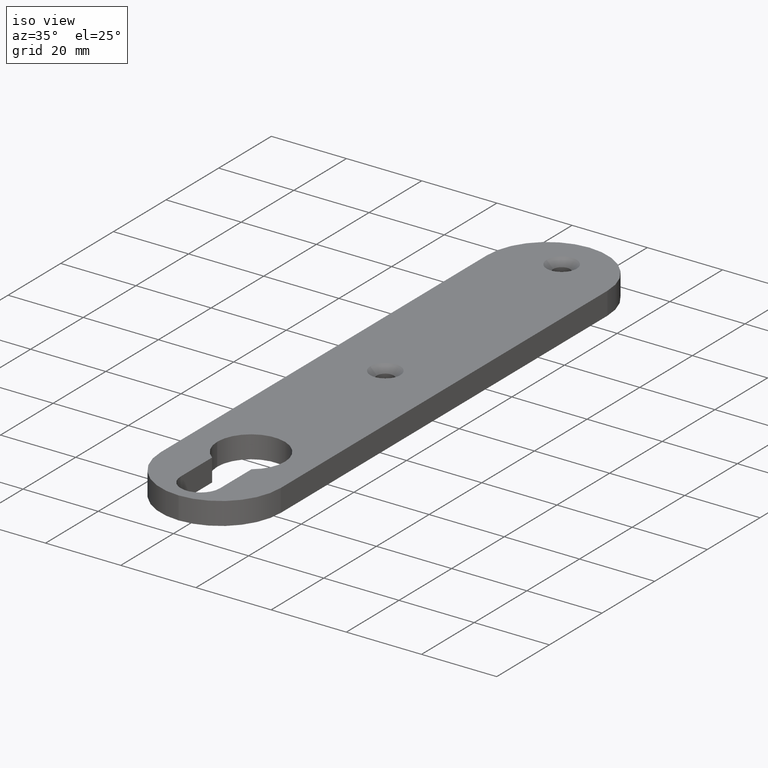
[diagram: clean part render]
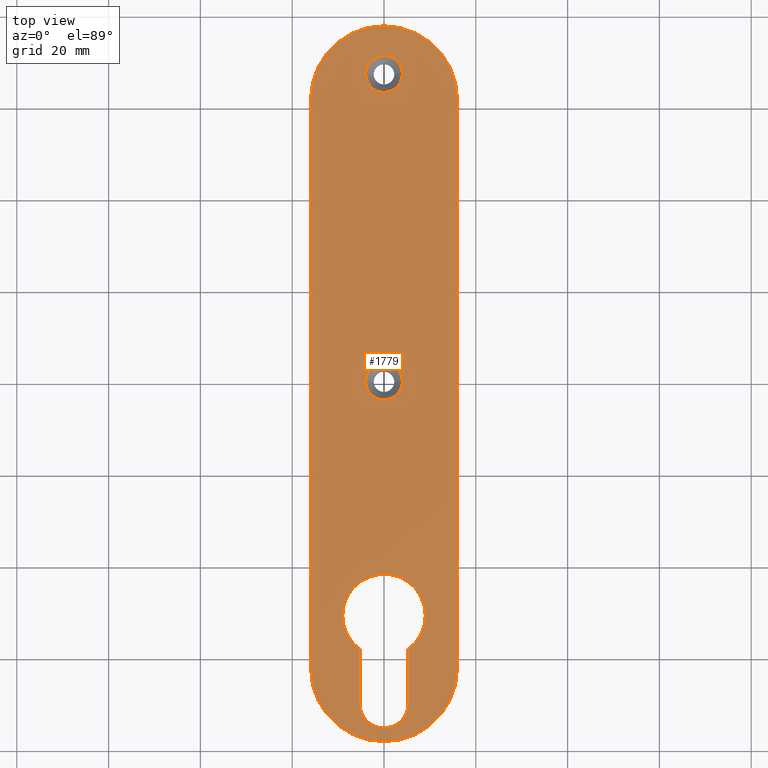
[diagram: tour spotlight — one face highlighted and labeled with its STEP entity id]
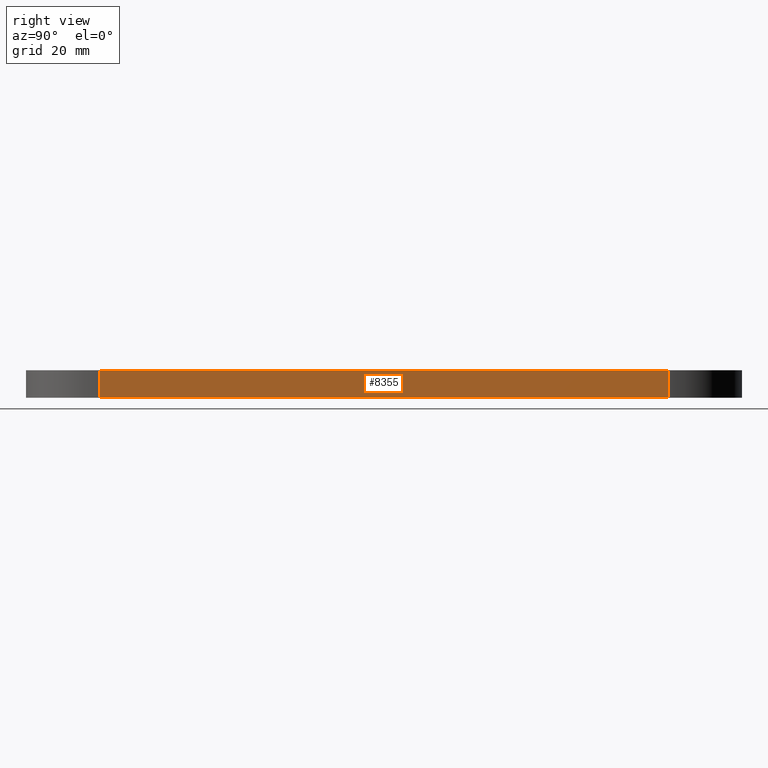
[diagram: tour spotlight — one face highlighted and labeled with its STEP entity id]
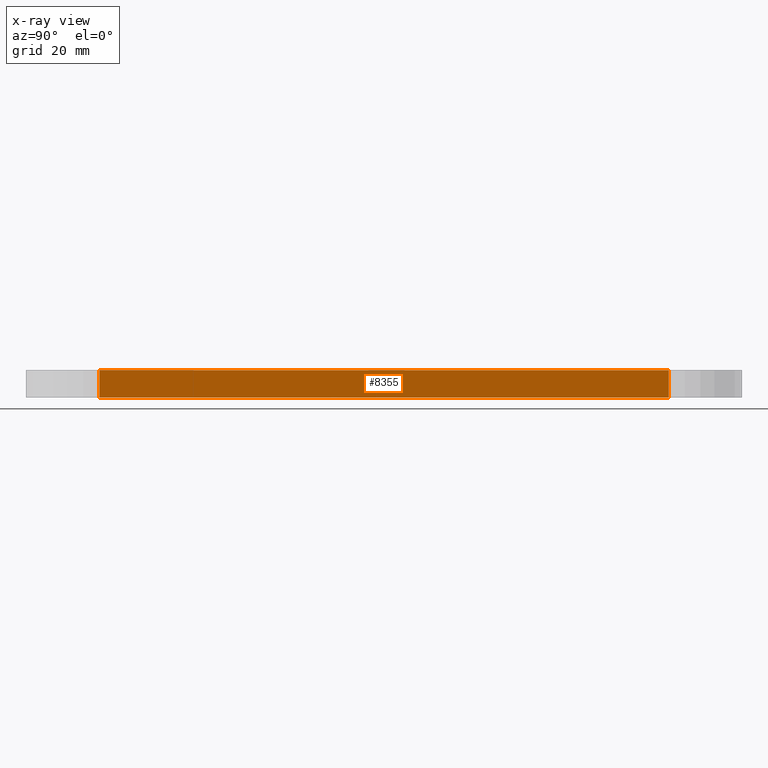
[diagram: x-ray of the same camera — body ghosted, this tour face saturated]
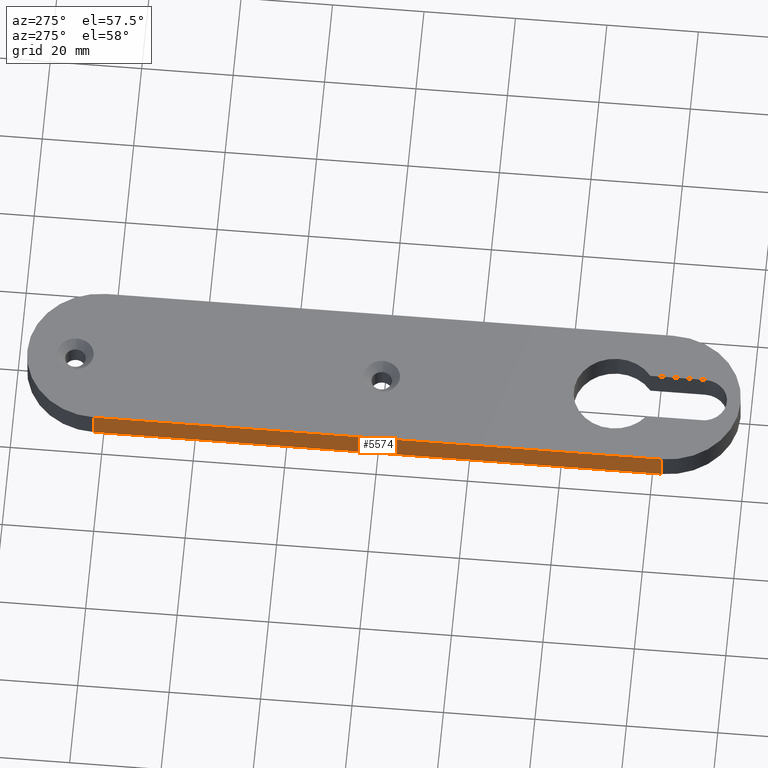
[diagram: tour spotlight — one face highlighted and labeled with its STEP entity id]
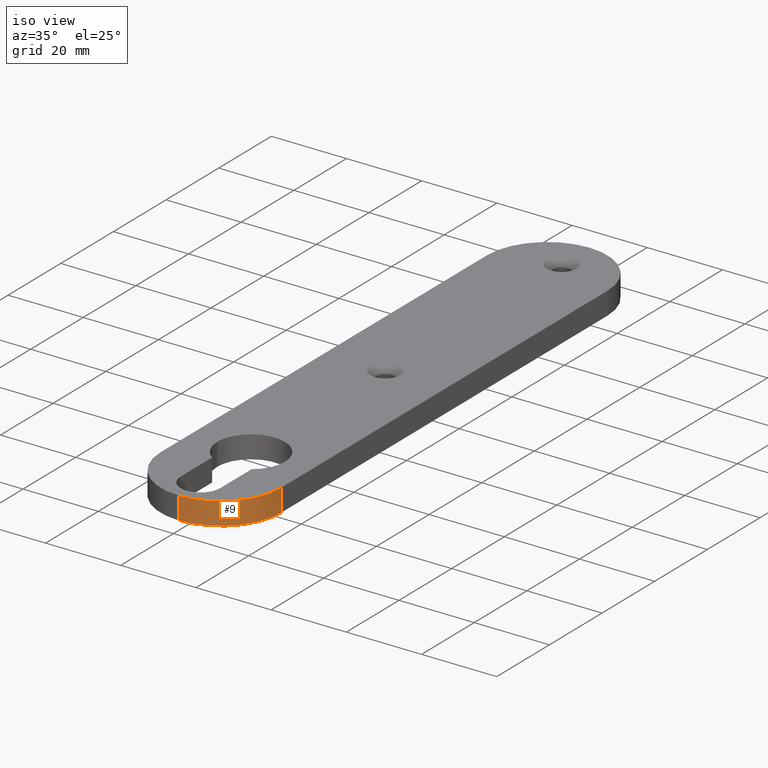
[diagram: tour spotlight — one face highlighted and labeled with its STEP entity id]
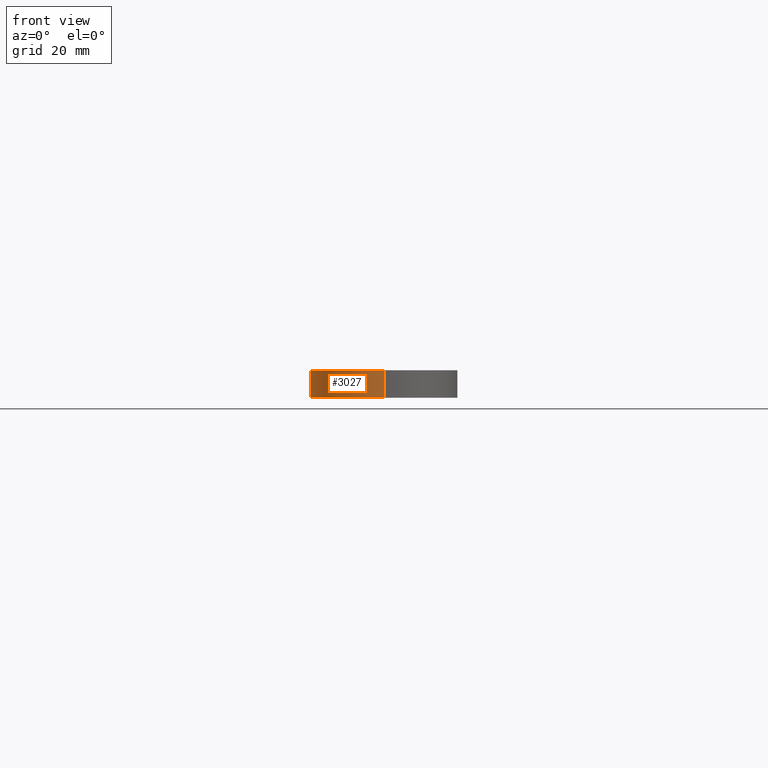
[diagram: tour spotlight — one face highlighted and labeled with its STEP entity id]
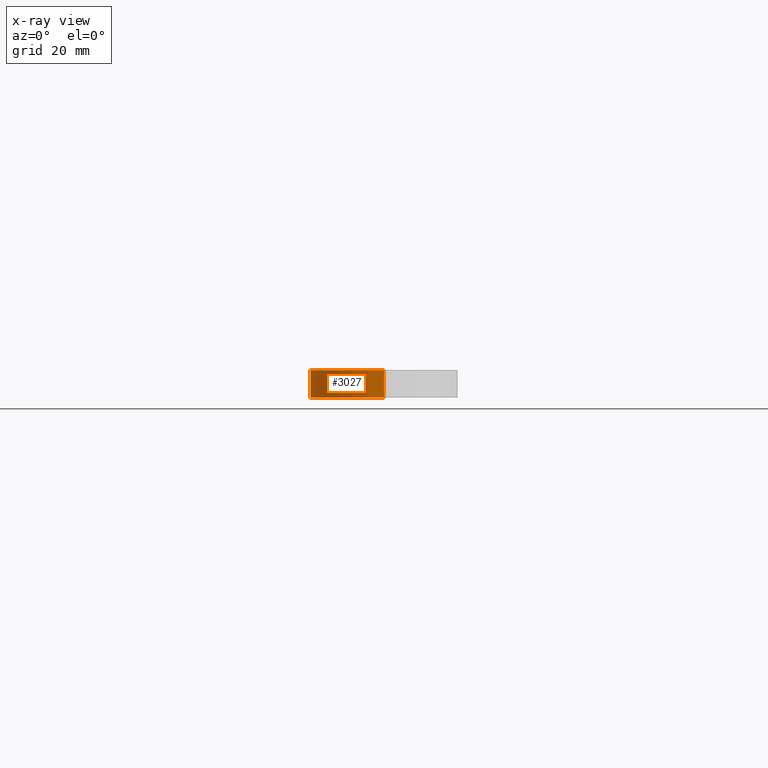
[diagram: x-ray of the same camera — body ghosted, this tour face saturated]
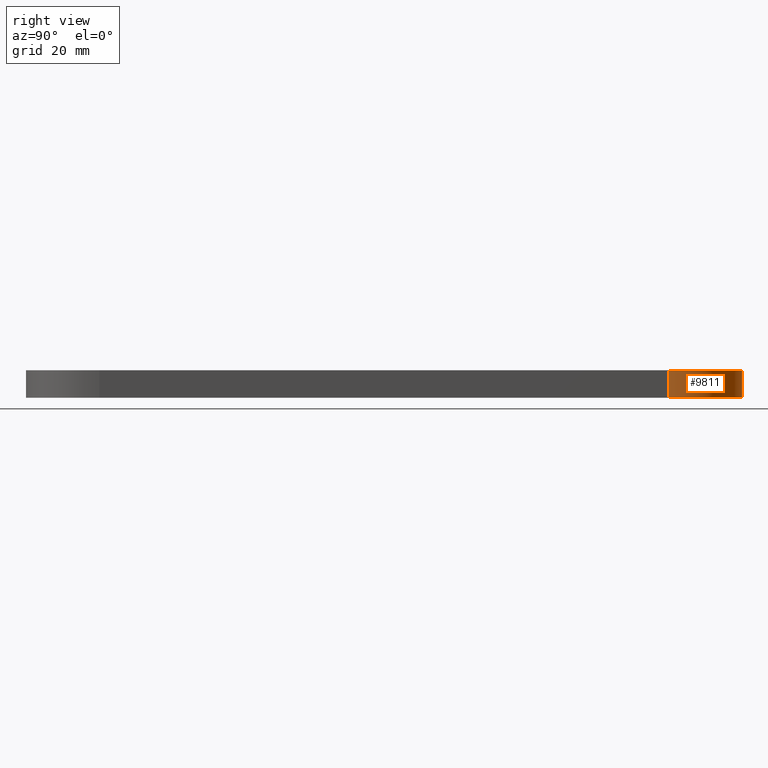
[diagram: tour spotlight — one face highlighted and labeled with its STEP entity id]
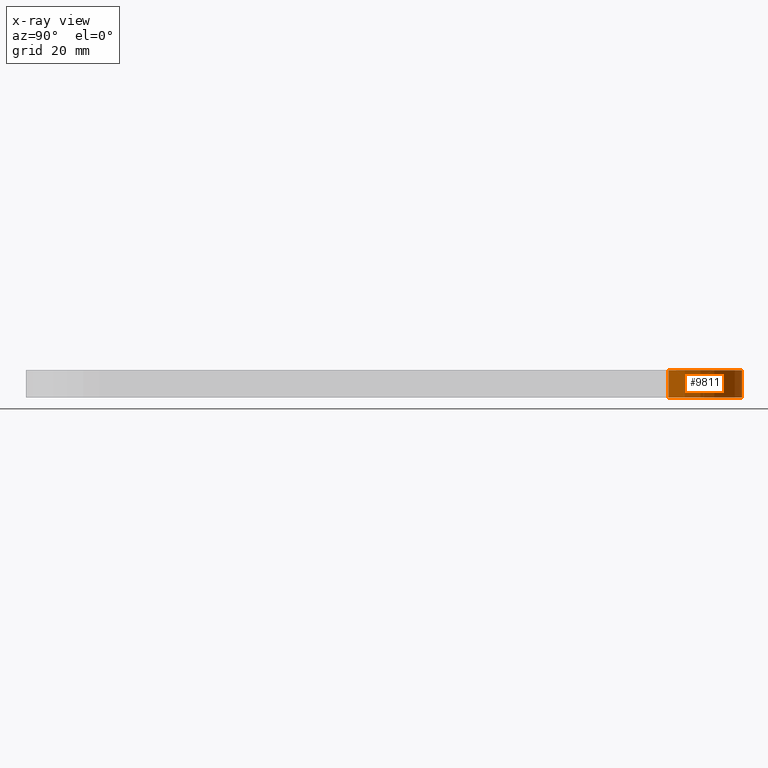
[diagram: x-ray of the same camera — body ghosted, this tour face saturated]
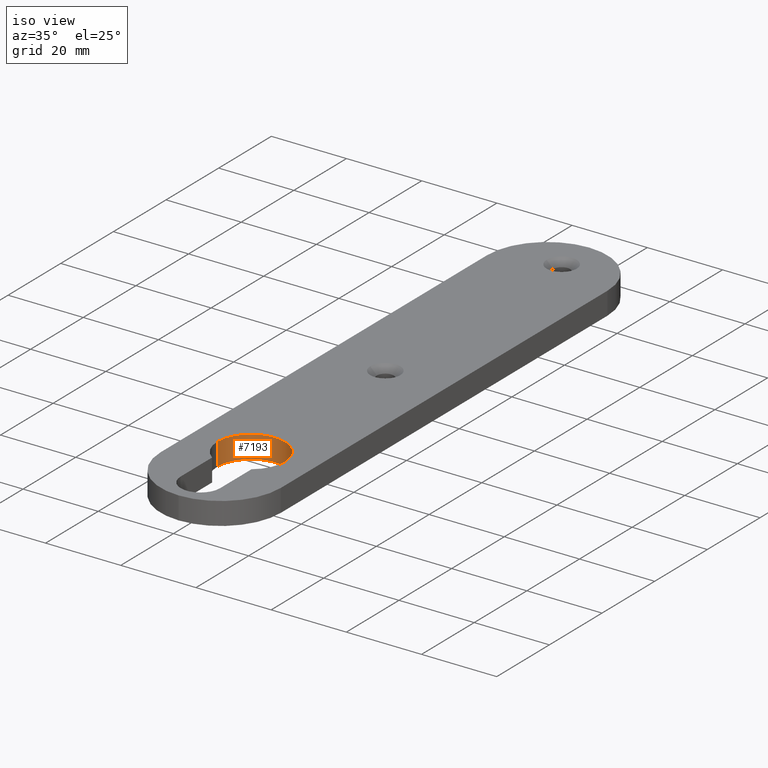
[diagram: tour spotlight — one face highlighted and labeled with its STEP entity id]
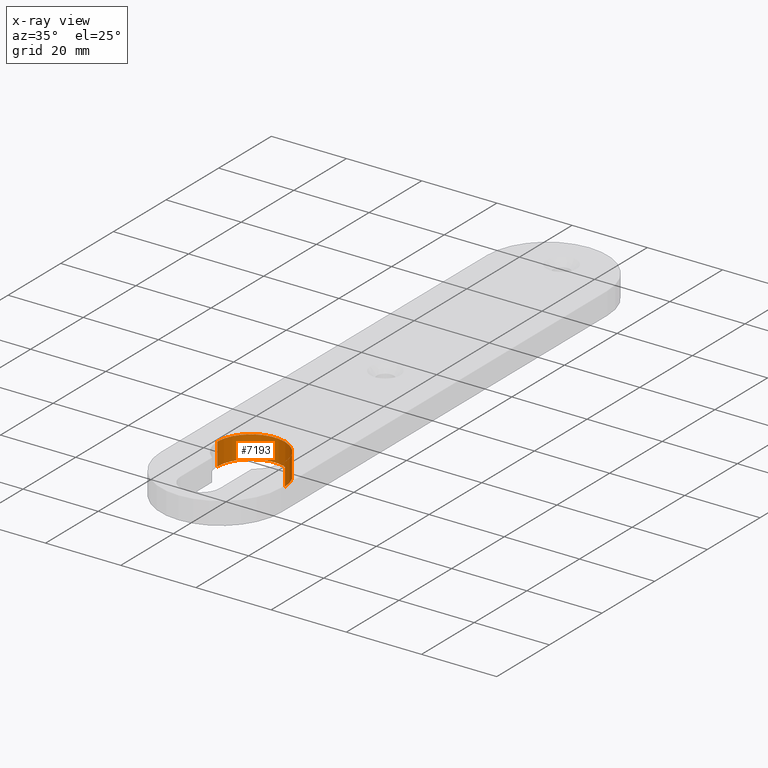
[diagram: x-ray of the same camera — body ghosted, this tour face saturated]
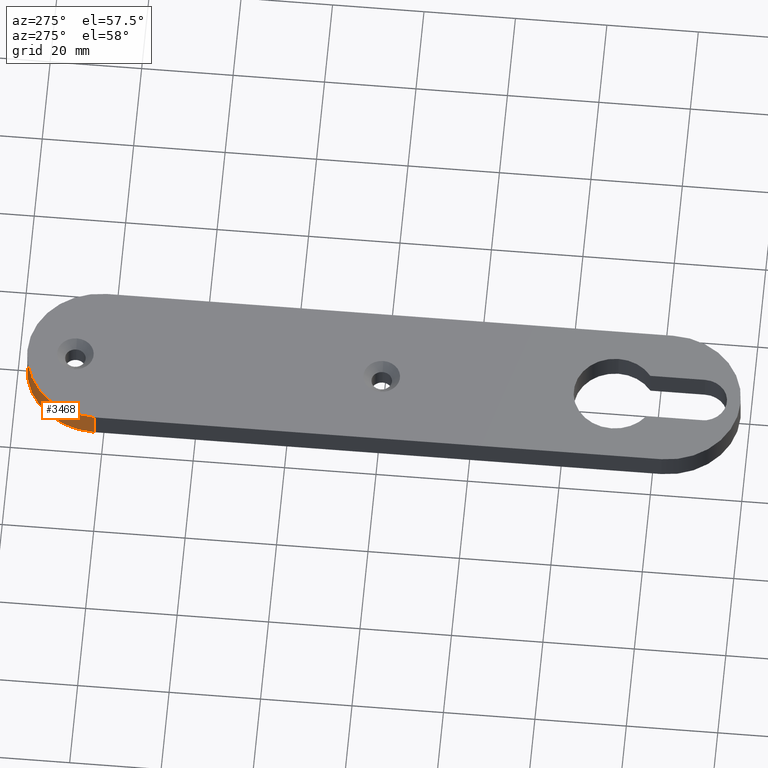
[diagram: tour spotlight — one face highlighted and labeled with its STEP entity id]
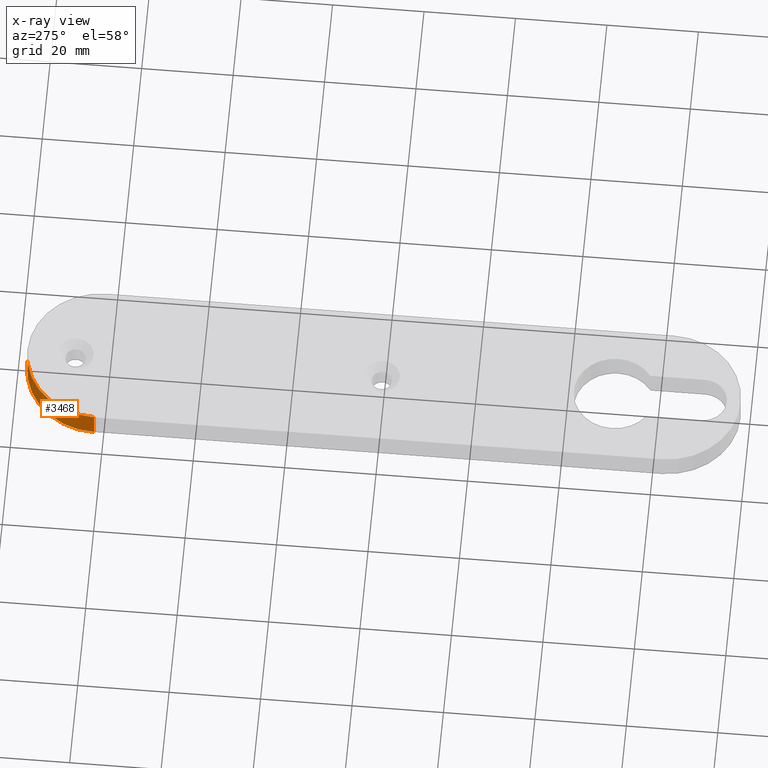
[diagram: x-ray of the same camera — body ghosted, this tour face saturated]
A machine part: a face-by-face anatomy tour. The part has 190 B-rep faces; the first image is the clean iso view, then the 8 largest visible faces are spotlighted one at a time (largest first), each with its STEP entity span.

Face 1 — top view, entity #1779. In plain terms, the highlighted planar face has unit normal (-0, 0, 1).
Definition (entity closure, byte-faithful):
#46 = CARTESIAN_POINT ( 'NONE',  ( 0.0000000000000000000, -50.49999999999997900, 6.000000000000000000 ) ) ;
#115 = CARTESIAN_POINT ( 'NONE',  ( -9.000000000000000000, -50.49999999999997900, 6.000000000000000000 ) ) ;
#159 = EDGE_CURVE ( 'NONE', #4601, #2399, #1301, .T. ) ;
#272 = CARTESIAN_POINT ( 'NONE',  ( -5.250000000000000000, -57.81009575860670000, 6.000000000000000000 ) ) ;
#408 = VERTEX_POINT ( 'NONE', #7068 ) ;
#461 = AXIS2_PLACEMENT_3D ( 'NONE', #6110, #6214, #7744 ) ;
#500 = DIRECTION ( 'NONE',  ( 1.000000000000000000, 0.0000000000000000000, 0.0000000000000000000 ) ) ;
#640 = ORIENTED_EDGE ( 'NONE', *, *, #991, .T. ) ;
#764 = DIRECTION ( 'NONE',  ( 1.000000000000000000, 0.0000000000000000000, 0.0000000000000000000 ) ) ;
#769 = AXIS2_PLACEMENT_3D ( 'NONE', #1405, #7488, #2832 ) ;
#776 = VECTOR ( 'NONE', #6389, 1000.000000000000000 ) ;
#825 = DIRECTION ( 'NONE',  ( 1.000000000000000000, 0.0000000000000000000, 0.0000000000000000000 ) ) ;
#839 = AXIS2_PLACEMENT_3D ( 'NONE', #9816, #5256, #764 ) ;
#845 = CARTESIAN_POINT ( 'NONE',  ( 0.0000000000000000000, -69.74999999999997200, 6.000000000000000000 ) ) ;
#991 = EDGE_CURVE ( 'NONE', #2384, #5326, #4386, .T. ) ;
#1030 = ORIENTED_EDGE ( 'NONE', *, *, #3487, .T. ) ;
#1043 = EDGE_CURVE ( 'NONE', #7415, #1578, #9740, .T. ) ;
#1176 = CARTESIAN_POINT ( 'NONE',  ( 1.040834085586084300E-014, -77.99999999999998600, 6.000000000000000000 ) ) ;
#1220 = EDGE_LOOP ( 'NONE', ( #3991, #2129, #9285, #7694, #7615, #2611 ) ) ;
#1228 = EDGE_CURVE ( 'NONE', #9726, #6211, #9233, .T. ) ;
#1271 = VERTEX_POINT ( 'NONE', #5618 ) ;
#1287 = CARTESIAN_POINT ( 'NONE',  ( -4.000000000000003600, 0.5000000000000183200, 6.000000000000000000 ) ) ;
#1301 = CIRCLE ( 'NONE', #7783, 4.000000000000003600 ) ;
#1396 = CIRCLE ( 'NONE', #8623, 5.249999999999999100 ) ;
#1405 = CARTESIAN_POINT ( 'NONE',  ( 8.273296577735546700E-015, -62.00000000000000000, 6.000000000000000000 ) ) ;
#1578 = VERTEX_POINT ( 'NONE', #115 ) ;
#1779 = ADVANCED_FACE ( 'NONE', ( #6719, #1821, #7777, #8371 ), #5156, .T. ) ;
#1821 = FACE_BOUND ( 'NONE', #7778, .T. ) ;
#1967 = LINE ( 'NONE', #6773, #8037 ) ;
#1996 = DIRECTION ( 'NONE',  ( 0.0000000000000000000, -0.0000000000000000000, -1.000000000000000000 ) ) ;
#2110 = AXIS2_PLACEMENT_3D ( 'NONE', #8606, #5583, #2542 ) ;
#2129 = ORIENTED_EDGE ( 'NONE', *, *, #9666, .F. ) ;
#2187 = CARTESIAN_POINT ( 'NONE',  ( 0.0000000000000000000, 0.5000000000000177600, 6.000000000000000000 ) ) ;
#2384 = VERTEX_POINT ( 'NONE', #1176 ) ;
#2399 = VERTEX_POINT ( 'NONE', #1287 ) ;
#2453 = ORIENTED_EDGE ( 'NONE', *, *, #6690, .T. ) ;
#2542 = DIRECTION ( 'NONE',  ( 1.000000000000000000, 0.0000000000000000000, 0.0000000000000000000 ) ) ;
#2579 = CARTESIAN_POINT ( 'NONE',  ( 5.250000000000000000, -57.81009575860670000, 6.000000000000000000 ) ) ;
#2611 = ORIENTED_EDGE ( 'NONE', *, *, #4767, .F. ) ;
#2651 = EDGE_CURVE ( 'NONE', #7099, #4606, #5945, .T. ) ;
#2828 = CIRCLE ( 'NONE', #5757, 4.000000000000003600 ) ;
#2832 = DIRECTION ( 'NONE',  ( 1.000000000000000000, 0.0000000000000000000, 0.0000000000000000000 ) ) ;
#2857 = EDGE_CURVE ( 'NONE', #5326, #4419, #3065, .T. ) ;
#2905 = VERTEX_POINT ( 'NONE', #272 ) ;
#2943 = CARTESIAN_POINT ( 'NONE',  ( 15.99999999999998900, 78.00000000000001400, 6.000000000000000000 ) ) ;
#2948 = CIRCLE ( 'NONE', #839, 16.00000000000000000 ) ;
#2950 = CARTESIAN_POINT ( 'NONE',  ( 9.000000000000000000, -50.49999999999997900, 6.000000000000000000 ) ) ;
#3065 = LINE ( 'NONE', #2943, #8425 ) ;
#3125 = AXIS2_PLACEMENT_3D ( 'NONE', #7374, #5190, #7477 ) ;
#3275 = EDGE_CURVE ( 'NONE', #8813, #1271, #2828, .T. ) ;
#3487 = EDGE_CURVE ( 'NONE', #1271, #8813, #8535, .T. ) ;
#3607 = DIRECTION ( 'NONE',  ( 0.0000000000000000000, 0.0000000000000000000, 1.000000000000000000 ) ) ;
#3634 = CIRCLE ( 'NONE', #2110, 16.00000000000000000 ) ;
#3707 = ORIENTED_EDGE ( 'NONE', *, *, #159, .T. ) ;
#3756 = CARTESIAN_POINT ( 'NONE',  ( 4.000000000000003600, 0.5000000000000177600, 6.000000000000000000 ) ) ;
#3774 = CARTESIAN_POINT ( 'NONE',  ( -7.917455864714657000E-015, 62.00000000000001400, 6.000000000000000000 ) ) ;
#3930 = EDGE_CURVE ( 'NONE', #408, #2384, #2948, .T. ) ;
#3954 = AXIS2_PLACEMENT_3D ( 'NONE', #3774, #9090, #4540 ) ;
#3963 = ORIENTED_EDGE ( 'NONE', *, *, #2857, .T. ) ;
#3971 = EDGE_CURVE ( 'NONE', #6211, #7415, #7339, .T. ) ;
#3991 = ORIENTED_EDGE ( 'NONE', *, *, #5526, .F. ) ;
#4093 = DIRECTION ( 'NONE',  ( 1.000000000000000000, 0.0000000000000000000, 0.0000000000000000000 ) ) ;
#4286 = EDGE_LOOP ( 'NONE', ( #6956, #640, #3963, #2453, #4403, #9831 ) ) ;
#4386 = CIRCLE ( 'NONE', #769, 16.00000000000000000 ) ;
#4403 = ORIENTED_EDGE ( 'NONE', *, *, #2651, .T. ) ;
#4419 = VERTEX_POINT ( 'NONE', #6968 ) ;
#4540 = DIRECTION ( 'NONE',  ( 1.000000000000000000, 0.0000000000000000000, 0.0000000000000000000 ) ) ;
#4601 = VERTEX_POINT ( 'NONE', #3756 ) ;
#4606 = VERTEX_POINT ( 'NONE', #7345 ) ;
#4767 = EDGE_CURVE ( 'NONE', #7180, #9726, #1396, .T. ) ;
#4919 = AXIS2_PLACEMENT_3D ( 'NONE', #6427, #8686, #4093 ) ;
#5156 = PLANE ( 'NONE',  #3125 ) ;
#5190 = DIRECTION ( 'NONE',  ( -0.0000000000000000000, 0.0000000000000000000, 1.000000000000000000 ) ) ;
#5256 = DIRECTION ( 'NONE',  ( -0.0000000000000000000, 0.0000000000000000000, 1.000000000000000000 ) ) ;
#5270 = CARTESIAN_POINT ( 'NONE',  ( 0.0000000000000000000, 0.5000000000000177600, 6.000000000000000000 ) ) ;
#5326 = VERTEX_POINT ( 'NONE', #6083 ) ;
#5381 = DIRECTION ( 'NONE',  ( 0.0000000000000000000, 0.0000000000000000000, 1.000000000000000000 ) ) ;
#5427 = AXIS2_PLACEMENT_3D ( 'NONE', #6438, #5749, #6548 ) ;
#5526 = EDGE_CURVE ( 'NONE', #2905, #7180, #5899, .T. ) ;
#5531 = EDGE_LOOP ( 'NONE', ( #1030, #9840 ) ) ;
#5538 = CARTESIAN_POINT ( 'NONE',  ( 5.250000000000000000, -57.81009575860670000, 6.000000000000000000 ) ) ;
#5569 = CARTESIAN_POINT ( 'NONE',  ( 5.249999999999999100, -69.74999999999997200, 6.000000000000000000 ) ) ;
#5583 = DIRECTION ( 'NONE',  ( -0.0000000000000000000, 0.0000000000000000000, 1.000000000000000000 ) ) ;
#5618 = CARTESIAN_POINT ( 'NONE',  ( 4.000000000000003600, 67.50000000000001400, 6.000000000000000000 ) ) ;
#5749 = DIRECTION ( 'NONE',  ( 0.0000000000000000000, 0.0000000000000000000, 1.000000000000000000 ) ) ;
#5757 = AXIS2_PLACEMENT_3D ( 'NONE', #6559, #1996, #500 ) ;
#5899 = LINE ( 'NONE', #9412, #776 ) ;
#5909 = CIRCLE ( 'NONE', #4919, 9.000000000000000000 ) ;
#5945 = CIRCLE ( 'NONE', #3954, 16.00000000000000000 ) ;
#6083 = CARTESIAN_POINT ( 'NONE',  ( 16.00000000000000700, -62.00000000000000000, 6.000000000000000000 ) ) ;
#6110 = CARTESIAN_POINT ( 'NONE',  ( 0.0000000000000000000, 67.50000000000001400, 6.000000000000000000 ) ) ;
#6211 = VERTEX_POINT ( 'NONE', #5538 ) ;
#6214 = DIRECTION ( 'NONE',  ( 0.0000000000000000000, -0.0000000000000000000, -1.000000000000000000 ) ) ;
#6315 = EDGE_CURVE ( 'NONE', #4606, #408, #1967, .T. ) ;
#6389 = DIRECTION ( 'NONE',  ( 7.264394424382670500E-017, -1.000000000000000000, -0.0000000000000000000 ) ) ;
#6427 = CARTESIAN_POINT ( 'NONE',  ( 0.0000000000000000000, -50.49999999999997900, 6.000000000000000000 ) ) ;
#6438 = CARTESIAN_POINT ( 'NONE',  ( 0.0000000000000000000, -50.49999999999997900, 6.000000000000000000 ) ) ;
#6548 = DIRECTION ( 'NONE',  ( 1.000000000000000000, 0.0000000000000000000, 0.0000000000000000000 ) ) ;
#6559 = CARTESIAN_POINT ( 'NONE',  ( 0.0000000000000000000, 67.50000000000001400, 6.000000000000000000 ) ) ;
#6690 = EDGE_CURVE ( 'NONE', #4419, #7099, #3634, .T. ) ;
#6709 = DIRECTION ( 'NONE',  ( 1.556803119466365500E-016, -1.000000000000000000, 0.0000000000000000000 ) ) ;
#6719 = FACE_BOUND ( 'NONE', #5531, .T. ) ;
#6773 = CARTESIAN_POINT ( 'NONE',  ( -16.00000000000001100, 78.00000000000001400, 6.000000000000000000 ) ) ;
#6843 = DIRECTION ( 'NONE',  ( 0.0000000000000000000, -0.0000000000000000000, -1.000000000000000000 ) ) ;
#6956 = ORIENTED_EDGE ( 'NONE', *, *, #3930, .T. ) ;
#6968 = CARTESIAN_POINT ( 'NONE',  ( 15.99999999999999300, 62.00000000000001400, 6.000000000000000000 ) ) ;
#7032 = CARTESIAN_POINT ( 'NONE',  ( -4.000000000000003600, 67.50000000000001400, 6.000000000000000000 ) ) ;
#7068 = CARTESIAN_POINT ( 'NONE',  ( -15.99999999999998900, -62.00000000000000000, 6.000000000000000000 ) ) ;
#7099 = VERTEX_POINT ( 'NONE', #9344 ) ;
#7180 = VERTEX_POINT ( 'NONE', #8673 ) ;
#7214 = VECTOR ( 'NONE', #9439, 1000.000000000000000 ) ;
#7339 = CIRCLE ( 'NONE', #5427, 9.000000000000000000 ) ;
#7345 = CARTESIAN_POINT ( 'NONE',  ( -16.00000000000000700, 62.00000000000001400, 6.000000000000000000 ) ) ;
#7374 = CARTESIAN_POINT ( 'NONE',  ( 0.0000000000000000000, 0.0000000000000000000, 6.000000000000000000 ) ) ;
#7415 = VERTEX_POINT ( 'NONE', #2950 ) ;
#7430 = EDGE_CURVE ( 'NONE', #2399, #4601, #7802, .T. ) ;
#7477 = DIRECTION ( 'NONE',  ( 1.000000000000000000, 0.0000000000000000000, 0.0000000000000000000 ) ) ;
#7488 = DIRECTION ( 'NONE',  ( -0.0000000000000000000, 0.0000000000000000000, 1.000000000000000000 ) ) ;
#7615 = ORIENTED_EDGE ( 'NONE', *, *, #1228, .F. ) ;
#7694 = ORIENTED_EDGE ( 'NONE', *, *, #3971, .F. ) ;
#7744 = DIRECTION ( 'NONE',  ( 1.000000000000000000, 0.0000000000000000000, 0.0000000000000000000 ) ) ;
#7777 = FACE_BOUND ( 'NONE', #1220, .T. ) ;
#7778 = EDGE_LOOP ( 'NONE', ( #3707, #9632 ) ) ;
#7783 = AXIS2_PLACEMENT_3D ( 'NONE', #5270, #6843, #8240 ) ;
#7792 = AXIS2_PLACEMENT_3D ( 'NONE', #2187, #8925, #8855 ) ;
#7802 = CIRCLE ( 'NONE', #7792, 4.000000000000003600 ) ;
#8037 = VECTOR ( 'NONE', #6709, 1000.000000000000000 ) ;
#8237 = AXIS2_PLACEMENT_3D ( 'NONE', #46, #5381, #825 ) ;
#8240 = DIRECTION ( 'NONE',  ( 1.000000000000000000, 0.0000000000000000000, 0.0000000000000000000 ) ) ;
#8263 = DIRECTION ( 'NONE',  ( -1.334402673828313300E-016, 1.000000000000000000, -0.0000000000000000000 ) ) ;
#8368 = DIRECTION ( 'NONE',  ( 1.000000000000000000, 0.0000000000000000000, 0.0000000000000000000 ) ) ;
#8371 = FACE_OUTER_BOUND ( 'NONE', #4286, .T. ) ;
#8425 = VECTOR ( 'NONE', #8263, 1000.000000000000000 ) ;
#8535 = CIRCLE ( 'NONE', #461, 4.000000000000003600 ) ;
#8606 = CARTESIAN_POINT ( 'NONE',  ( -6.938893903907228400E-015, 62.00000000000001400, 6.000000000000000000 ) ) ;
#8623 = AXIS2_PLACEMENT_3D ( 'NONE', #845, #3607, #8368 ) ;
#8673 = CARTESIAN_POINT ( 'NONE',  ( -5.249999999999999100, -69.74999999999997200, 6.000000000000000000 ) ) ;
#8686 = DIRECTION ( 'NONE',  ( 0.0000000000000000000, 0.0000000000000000000, 1.000000000000000000 ) ) ;
#8813 = VERTEX_POINT ( 'NONE', #7032 ) ;
#8855 = DIRECTION ( 'NONE',  ( 1.000000000000000000, 0.0000000000000000000, 0.0000000000000000000 ) ) ;
#8925 = DIRECTION ( 'NONE',  ( 0.0000000000000000000, -0.0000000000000000000, -1.000000000000000000 ) ) ;
#9090 = DIRECTION ( 'NONE',  ( -0.0000000000000000000, 0.0000000000000000000, 1.000000000000000000 ) ) ;
#9233 = LINE ( 'NONE', #2579, #7214 ) ;
#9285 = ORIENTED_EDGE ( 'NONE', *, *, #1043, .F. ) ;
#9344 = CARTESIAN_POINT ( 'NONE',  ( -6.938893903907228400E-015, 78.00000000000001400, 6.000000000000000000 ) ) ;
#9412 = CARTESIAN_POINT ( 'NONE',  ( -5.249999999999999100, -69.74999999999997200, 6.000000000000000000 ) ) ;
#9439 = DIRECTION ( 'NONE',  ( 7.264394424382670500E-017, 1.000000000000000000, -0.0000000000000000000 ) ) ;
#9632 = ORIENTED_EDGE ( 'NONE', *, *, #7430, .T. ) ;
#9666 = EDGE_CURVE ( 'NONE', #1578, #2905, #5909, .T. ) ;
#9726 = VERTEX_POINT ( 'NONE', #5569 ) ;
#9740 = CIRCLE ( 'NONE', #8237, 9.000000000000000000 ) ;
#9816 = CARTESIAN_POINT ( 'NONE',  ( 1.040834085586084300E-014, -61.99999999999998600, 6.000000000000000000 ) ) ;
#9831 = ORIENTED_EDGE ( 'NONE', *, *, #6315, .T. ) ;
#9840 = ORIENTED_EDGE ( 'NONE', *, *, #3275, .T. ) ;

Face 2 — right view, entity #8355. An x-ray twin of the same camera follows (body ghosted, this face saturated) — the face is partly hidden behind the body. In plain terms, the highlighted planar face has unit normal (-1, -0, 0).
Definition (entity closure, byte-faithful):
#104 = DIRECTION ( 'NONE',  ( 1.334402673828313300E-016, -1.000000000000000000, 0.0000000000000000000 ) ) ;
#673 = LINE ( 'NONE', #1959, #7810 ) ;
#810 = EDGE_CURVE ( 'NONE', #5326, #6376, #6160, .T. ) ;
#1959 = CARTESIAN_POINT ( 'NONE',  ( 15.99999999999998900, 78.00000000000001400, 0.0000000000000000000 ) ) ;
#2173 = CARTESIAN_POINT ( 'NONE',  ( 15.99999999999999300, 62.00000000000001400, 6.000000000000000000 ) ) ;
#2175 = ORIENTED_EDGE ( 'NONE', *, *, #2857, .F. ) ;
#2478 = FACE_OUTER_BOUND ( 'NONE', #7376, .T. ) ;
#2683 = LINE ( 'NONE', #2173, #8523 ) ;
#2857 = EDGE_CURVE ( 'NONE', #5326, #4419, #3065, .T. ) ;
#2943 = CARTESIAN_POINT ( 'NONE',  ( 15.99999999999998900, 78.00000000000001400, 6.000000000000000000 ) ) ;
#3065 = LINE ( 'NONE', #2943, #8425 ) ;
#4038 = ORIENTED_EDGE ( 'NONE', *, *, #8956, .T. ) ;
#4419 = VERTEX_POINT ( 'NONE', #6968 ) ;
#4515 = EDGE_CURVE ( 'NONE', #9280, #4419, #2683, .T. ) ;
#4620 = CARTESIAN_POINT ( 'NONE',  ( 15.99999999999999300, 62.00000000000001400, 0.0000000000000000000 ) ) ;
#4669 = DIRECTION ( 'NONE',  ( -1.000000000000000000, -1.334402673828313300E-016, 0.0000000000000000000 ) ) ;
#5326 = VERTEX_POINT ( 'NONE', #6083 ) ;
#5597 = DIRECTION ( 'NONE',  ( 0.0000000000000000000, 0.0000000000000000000, -1.000000000000000000 ) ) ;
#5763 = DIRECTION ( 'NONE',  ( -1.334402673828313300E-016, 1.000000000000000000, -0.0000000000000000000 ) ) ;
#5890 = AXIS2_PLACEMENT_3D ( 'NONE', #7770, #4669, #104 ) ;
#6065 = DIRECTION ( 'NONE',  ( -0.0000000000000000000, -0.0000000000000000000, 1.000000000000000000 ) ) ;
#6083 = CARTESIAN_POINT ( 'NONE',  ( 16.00000000000000700, -62.00000000000000000, 6.000000000000000000 ) ) ;
#6160 = LINE ( 'NONE', #6299, #7470 ) ;
#6299 = CARTESIAN_POINT ( 'NONE',  ( 16.00000000000000700, -62.00000000000000000, 6.000000000000000000 ) ) ;
#6376 = VERTEX_POINT ( 'NONE', #7559 ) ;
#6968 = CARTESIAN_POINT ( 'NONE',  ( 15.99999999999999300, 62.00000000000001400, 6.000000000000000000 ) ) ;
#7376 = EDGE_LOOP ( 'NONE', ( #2175, #7604, #4038, #9778 ) ) ;
#7470 = VECTOR ( 'NONE', #5597, 1000.000000000000000 ) ;
#7559 = CARTESIAN_POINT ( 'NONE',  ( 16.00000000000000700, -62.00000000000000000, 0.0000000000000000000 ) ) ;
#7604 = ORIENTED_EDGE ( 'NONE', *, *, #810, .T. ) ;
#7770 = CARTESIAN_POINT ( 'NONE',  ( 15.99999999999998900, 78.00000000000001400, 6.000000000000000000 ) ) ;
#7810 = VECTOR ( 'NONE', #5763, 1000.000000000000000 ) ;
#8263 = DIRECTION ( 'NONE',  ( -1.334402673828313300E-016, 1.000000000000000000, -0.0000000000000000000 ) ) ;
#8355 = ADVANCED_FACE ( 'NONE', ( #2478 ), #9220, .F. ) ;
#8425 = VECTOR ( 'NONE', #8263, 1000.000000000000000 ) ;
#8523 = VECTOR ( 'NONE', #6065, 1000.000000000000000 ) ;
#8956 = EDGE_CURVE ( 'NONE', #6376, #9280, #673, .T. ) ;
#9220 = PLANE ( 'NONE',  #5890 ) ;
#9280 = VERTEX_POINT ( 'NONE', #4620 ) ;
#9778 = ORIENTED_EDGE ( 'NONE', *, *, #4515, .T. ) ;

Face 3 — auxiliary view, entity #5574. In plain terms, the highlighted planar face has unit normal (1, 0, -0).
Definition (entity closure, byte-faithful):
#312 = VECTOR ( 'NONE', #7061, 1000.000000000000000 ) ;
#408 = VERTEX_POINT ( 'NONE', #7068 ) ;
#826 = EDGE_CURVE ( 'NONE', #4606, #4147, #3524, .T. ) ;
#935 = ORIENTED_EDGE ( 'NONE', *, *, #826, .T. ) ;
#1420 = VECTOR ( 'NONE', #5864, 1000.000000000000000 ) ;
#1571 = ORIENTED_EDGE ( 'NONE', *, *, #7891, .T. ) ;
#1794 = CARTESIAN_POINT ( 'NONE',  ( -16.00000000000000700, 62.00000000000001400, 0.0000000000000000000 ) ) ;
#1967 = LINE ( 'NONE', #6773, #8037 ) ;
#2590 = CARTESIAN_POINT ( 'NONE',  ( -16.00000000000000700, 62.00000000000001400, 6.000000000000000000 ) ) ;
#2901 = CARTESIAN_POINT ( 'NONE',  ( -16.00000000000001100, 78.00000000000001400, 0.0000000000000000000 ) ) ;
#3427 = CARTESIAN_POINT ( 'NONE',  ( -15.99999999999998900, -62.00000000000000000, 6.000000000000000000 ) ) ;
#3524 = LINE ( 'NONE', #2590, #312 ) ;
#3584 = DIRECTION ( 'NONE',  ( -1.556803119466365500E-016, 1.000000000000000000, 0.0000000000000000000 ) ) ;
#3648 = VERTEX_POINT ( 'NONE', #6423 ) ;
#4147 = VERTEX_POINT ( 'NONE', #1794 ) ;
#4238 = EDGE_LOOP ( 'NONE', ( #1571, #4829, #4741, #935 ) ) ;
#4359 = DIRECTION ( 'NONE',  ( 1.000000000000000000, 1.556803119466365500E-016, -0.0000000000000000000 ) ) ;
#4606 = VERTEX_POINT ( 'NONE', #7345 ) ;
#4741 = ORIENTED_EDGE ( 'NONE', *, *, #6315, .F. ) ;
#4829 = ORIENTED_EDGE ( 'NONE', *, *, #5103, .T. ) ;
#5103 = EDGE_CURVE ( 'NONE', #3648, #408, #8740, .T. ) ;
#5298 = FACE_OUTER_BOUND ( 'NONE', #4238, .T. ) ;
#5574 = ADVANCED_FACE ( 'NONE', ( #5298 ), #5887, .F. ) ;
#5799 = DIRECTION ( 'NONE',  ( 0.0000000000000000000, -0.0000000000000000000, 1.000000000000000000 ) ) ;
#5864 = DIRECTION ( 'NONE',  ( 1.556803119466365500E-016, -1.000000000000000000, 0.0000000000000000000 ) ) ;
#5887 = PLANE ( 'NONE',  #6053 ) ;
#6053 = AXIS2_PLACEMENT_3D ( 'NONE', #9648, #4359, #3584 ) ;
#6315 = EDGE_CURVE ( 'NONE', #4606, #408, #1967, .T. ) ;
#6423 = CARTESIAN_POINT ( 'NONE',  ( -15.99999999999998900, -62.00000000000000000, 0.0000000000000000000 ) ) ;
#6709 = DIRECTION ( 'NONE',  ( 1.556803119466365500E-016, -1.000000000000000000, 0.0000000000000000000 ) ) ;
#6745 = VECTOR ( 'NONE', #5799, 1000.000000000000000 ) ;
#6773 = CARTESIAN_POINT ( 'NONE',  ( -16.00000000000001100, 78.00000000000001400, 6.000000000000000000 ) ) ;
#7061 = DIRECTION ( 'NONE',  ( 0.0000000000000000000, 0.0000000000000000000, -1.000000000000000000 ) ) ;
#7068 = CARTESIAN_POINT ( 'NONE',  ( -15.99999999999998900, -62.00000000000000000, 6.000000000000000000 ) ) ;
#7345 = CARTESIAN_POINT ( 'NONE',  ( -16.00000000000000700, 62.00000000000001400, 6.000000000000000000 ) ) ;
#7891 = EDGE_CURVE ( 'NONE', #4147, #3648, #9625, .T. ) ;
#8037 = VECTOR ( 'NONE', #6709, 1000.000000000000000 ) ;
#8740 = LINE ( 'NONE', #3427, #6745 ) ;
#9625 = LINE ( 'NONE', #2901, #1420 ) ;
#9648 = CARTESIAN_POINT ( 'NONE',  ( -16.00000000000001100, 78.00000000000001400, 6.000000000000000000 ) ) ;

Face 4 — iso view, entity #9. In plain terms, the highlighted cylindrical surface (partial cylindrical patch) has radius 16 mm, axis along (0, 0, -1).
Definition (entity closure, byte-faithful):
#9 = ADVANCED_FACE ( 'NONE', ( #2139 ), #4277, .T. ) ;
#177 = CIRCLE ( 'NONE', #8798, 16.00000000000000000 ) ;
#769 = AXIS2_PLACEMENT_3D ( 'NONE', #1405, #7488, #2832 ) ;
#810 = EDGE_CURVE ( 'NONE', #5326, #6376, #6160, .T. ) ;
#834 = ORIENTED_EDGE ( 'NONE', *, *, #810, .F. ) ;
#936 = VERTEX_POINT ( 'NONE', #7309 ) ;
#991 = EDGE_CURVE ( 'NONE', #2384, #5326, #4386, .T. ) ;
#1176 = CARTESIAN_POINT ( 'NONE',  ( 1.040834085586084300E-014, -77.99999999999998600, 6.000000000000000000 ) ) ;
#1405 = CARTESIAN_POINT ( 'NONE',  ( 8.273296577735546700E-015, -62.00000000000000000, 6.000000000000000000 ) ) ;
#2139 = FACE_OUTER_BOUND ( 'NONE', #2559, .T. ) ;
#2384 = VERTEX_POINT ( 'NONE', #1176 ) ;
#2559 = EDGE_LOOP ( 'NONE', ( #3382, #7978, #7246, #834 ) ) ;
#2832 = DIRECTION ( 'NONE',  ( 1.000000000000000000, 0.0000000000000000000, 0.0000000000000000000 ) ) ;
#3382 = ORIENTED_EDGE ( 'NONE', *, *, #991, .F. ) ;
#3901 = DIRECTION ( 'NONE',  ( 1.000000000000000000, 0.0000000000000000000, 0.0000000000000000000 ) ) ;
#4277 = CYLINDRICAL_SURFACE ( 'NONE', #7598, 16.00000000000000000 ) ;
#4386 = CIRCLE ( 'NONE', #769, 16.00000000000000000 ) ;
#4395 = EDGE_CURVE ( 'NONE', #6376, #936, #177, .T. ) ;
#4821 = DIRECTION ( 'NONE',  ( -0.0000000000000000000, 0.0000000000000000000, -1.000000000000000000 ) ) ;
#5326 = VERTEX_POINT ( 'NONE', #6083 ) ;
#5474 = CARTESIAN_POINT ( 'NONE',  ( 8.273296577735546700E-015, -62.00000000000000000, 0.0000000000000000000 ) ) ;
#5565 = CARTESIAN_POINT ( 'NONE',  ( 1.040834085586084300E-014, -77.99999999999998600, 6.000000000000000000 ) ) ;
#5597 = DIRECTION ( 'NONE',  ( 0.0000000000000000000, 0.0000000000000000000, -1.000000000000000000 ) ) ;
#5779 = DIRECTION ( 'NONE',  ( 0.0000000000000000000, 0.0000000000000000000, -1.000000000000000000 ) ) ;
#6083 = CARTESIAN_POINT ( 'NONE',  ( 16.00000000000000700, -62.00000000000000000, 6.000000000000000000 ) ) ;
#6160 = LINE ( 'NONE', #6299, #7470 ) ;
#6299 = CARTESIAN_POINT ( 'NONE',  ( 16.00000000000000700, -62.00000000000000000, 6.000000000000000000 ) ) ;
#6376 = VERTEX_POINT ( 'NONE', #7559 ) ;
#6383 = LINE ( 'NONE', #5565, #8396 ) ;
#7199 = DIRECTION ( 'NONE',  ( -1.000000000000000000, 0.0000000000000000000, 0.0000000000000000000 ) ) ;
#7246 = ORIENTED_EDGE ( 'NONE', *, *, #4395, .F. ) ;
#7309 = CARTESIAN_POINT ( 'NONE',  ( 1.040834085586084300E-014, -77.99999999999998600, 0.0000000000000000000 ) ) ;
#7470 = VECTOR ( 'NONE', #5597, 1000.000000000000000 ) ;
#7488 = DIRECTION ( 'NONE',  ( -0.0000000000000000000, 0.0000000000000000000, 1.000000000000000000 ) ) ;
#7559 = CARTESIAN_POINT ( 'NONE',  ( 16.00000000000000700, -62.00000000000000000, 0.0000000000000000000 ) ) ;
#7598 = AXIS2_PLACEMENT_3D ( 'NONE', #8032, #5779, #7199 ) ;
#7978 = ORIENTED_EDGE ( 'NONE', *, *, #8816, .T. ) ;
#8032 = CARTESIAN_POINT ( 'NONE',  ( 8.273296577735546700E-015, -62.00000000000000000, 6.000000000000000000 ) ) ;
#8396 = VECTOR ( 'NONE', #4821, 1000.000000000000000 ) ;
#8798 = AXIS2_PLACEMENT_3D ( 'NONE', #5474, #9293, #3901 ) ;
#8816 = EDGE_CURVE ( 'NONE', #2384, #936, #6383, .T. ) ;
#9293 = DIRECTION ( 'NONE',  ( 0.0000000000000000000, -0.0000000000000000000, -1.000000000000000000 ) ) ;

Face 5 — front view, entity #3027. An x-ray twin of the same camera follows (body ghosted, this face saturated) — the face is partly hidden behind the body. In plain terms, the highlighted cylindrical surface (partial cylindrical patch) has radius 16 mm, axis along (-0, 0, -1).
Definition (entity closure, byte-faithful):
#408 = VERTEX_POINT ( 'NONE', #7068 ) ;
#626 = ORIENTED_EDGE ( 'NONE', *, *, #9092, .F. ) ;
#764 = DIRECTION ( 'NONE',  ( 1.000000000000000000, 0.0000000000000000000, 0.0000000000000000000 ) ) ;
#839 = AXIS2_PLACEMENT_3D ( 'NONE', #9816, #5256, #764 ) ;
#936 = VERTEX_POINT ( 'NONE', #7309 ) ;
#1176 = CARTESIAN_POINT ( 'NONE',  ( 1.040834085586084300E-014, -77.99999999999998600, 6.000000000000000000 ) ) ;
#1522 = DIRECTION ( 'NONE',  ( -0.0000000000000000000, 0.0000000000000000000, -1.000000000000000000 ) ) ;
#2067 = CARTESIAN_POINT ( 'NONE',  ( 1.040834085586084300E-014, -61.99999999999998600, 0.0000000000000000000 ) ) ;
#2384 = VERTEX_POINT ( 'NONE', #1176 ) ;
#2948 = CIRCLE ( 'NONE', #839, 16.00000000000000000 ) ;
#3027 = ADVANCED_FACE ( 'NONE', ( #7836 ), #3307, .T. ) ;
#3307 = CYLINDRICAL_SURFACE ( 'NONE', #8485, 16.00000000000000000 ) ;
#3427 = CARTESIAN_POINT ( 'NONE',  ( -15.99999999999998900, -62.00000000000000000, 6.000000000000000000 ) ) ;
#3648 = VERTEX_POINT ( 'NONE', #6423 ) ;
#3658 = DIRECTION ( 'NONE',  ( 1.000000000000000000, 0.0000000000000000000, 0.0000000000000000000 ) ) ;
#3820 = CARTESIAN_POINT ( 'NONE',  ( 1.040834085586084300E-014, -61.99999999999998600, 6.000000000000000000 ) ) ;
#3930 = EDGE_CURVE ( 'NONE', #408, #2384, #2948, .T. ) ;
#4821 = DIRECTION ( 'NONE',  ( -0.0000000000000000000, 0.0000000000000000000, -1.000000000000000000 ) ) ;
#5103 = EDGE_CURVE ( 'NONE', #3648, #408, #8740, .T. ) ;
#5256 = DIRECTION ( 'NONE',  ( -0.0000000000000000000, 0.0000000000000000000, 1.000000000000000000 ) ) ;
#5276 = ORIENTED_EDGE ( 'NONE', *, *, #8816, .F. ) ;
#5565 = CARTESIAN_POINT ( 'NONE',  ( 1.040834085586084300E-014, -77.99999999999998600, 6.000000000000000000 ) ) ;
#5799 = DIRECTION ( 'NONE',  ( 0.0000000000000000000, -0.0000000000000000000, 1.000000000000000000 ) ) ;
#5805 = ORIENTED_EDGE ( 'NONE', *, *, #3930, .F. ) ;
#6383 = LINE ( 'NONE', #5565, #8396 ) ;
#6423 = CARTESIAN_POINT ( 'NONE',  ( -15.99999999999998900, -62.00000000000000000, 0.0000000000000000000 ) ) ;
#6745 = VECTOR ( 'NONE', #5799, 1000.000000000000000 ) ;
#7068 = CARTESIAN_POINT ( 'NONE',  ( -15.99999999999998900, -62.00000000000000000, 6.000000000000000000 ) ) ;
#7309 = CARTESIAN_POINT ( 'NONE',  ( 1.040834085586084300E-014, -77.99999999999998600, 0.0000000000000000000 ) ) ;
#7578 = CIRCLE ( 'NONE', #9127, 16.00000000000000000 ) ;
#7610 = ORIENTED_EDGE ( 'NONE', *, *, #5103, .F. ) ;
#7836 = FACE_OUTER_BOUND ( 'NONE', #8480, .T. ) ;
#8225 = DIRECTION ( 'NONE',  ( 0.0000000000000000000, -0.0000000000000000000, -1.000000000000000000 ) ) ;
#8380 = DIRECTION ( 'NONE',  ( -1.000000000000000000, 0.0000000000000000000, 0.0000000000000000000 ) ) ;
#8396 = VECTOR ( 'NONE', #4821, 1000.000000000000000 ) ;
#8480 = EDGE_LOOP ( 'NONE', ( #5276, #5805, #7610, #626 ) ) ;
#8485 = AXIS2_PLACEMENT_3D ( 'NONE', #3820, #1522, #8380 ) ;
#8740 = LINE ( 'NONE', #3427, #6745 ) ;
#8816 = EDGE_CURVE ( 'NONE', #2384, #936, #6383, .T. ) ;
#9092 = EDGE_CURVE ( 'NONE', #936, #3648, #7578, .T. ) ;
#9127 = AXIS2_PLACEMENT_3D ( 'NONE', #2067, #8225, #3658 ) ;
#9816 = CARTESIAN_POINT ( 'NONE',  ( 1.040834085586084300E-014, -61.99999999999998600, 6.000000000000000000 ) ) ;

Face 6 — right view, entity #9811. An x-ray twin of the same camera follows (body ghosted, this face saturated) — the face is partly hidden behind the body. In plain terms, the highlighted cylindrical surface (partial cylindrical patch) has radius 16 mm, axis along (0, 0, -1).
Definition (entity closure, byte-faithful):
#95 = DIRECTION ( 'NONE',  ( 1.000000000000000000, 0.0000000000000000000, 0.0000000000000000000 ) ) ;
#540 = CYLINDRICAL_SURFACE ( 'NONE', #6676, 16.00000000000000000 ) ;
#916 = VERTEX_POINT ( 'NONE', #1266 ) ;
#1266 = CARTESIAN_POINT ( 'NONE',  ( -6.938893903907228400E-015, 78.00000000000001400, 0.0000000000000000000 ) ) ;
#2110 = AXIS2_PLACEMENT_3D ( 'NONE', #8606, #5583, #2542 ) ;
#2173 = CARTESIAN_POINT ( 'NONE',  ( 15.99999999999999300, 62.00000000000001400, 6.000000000000000000 ) ) ;
#2354 = CARTESIAN_POINT ( 'NONE',  ( -6.938893903907228400E-015, 78.00000000000001400, 6.000000000000000000 ) ) ;
#2542 = DIRECTION ( 'NONE',  ( 1.000000000000000000, 0.0000000000000000000, 0.0000000000000000000 ) ) ;
#2683 = LINE ( 'NONE', #2173, #8523 ) ;
#2795 = FACE_OUTER_BOUND ( 'NONE', #5468, .T. ) ;
#3100 = CARTESIAN_POINT ( 'NONE',  ( -6.938893903907228400E-015, 62.00000000000001400, 0.0000000000000000000 ) ) ;
#3634 = CIRCLE ( 'NONE', #2110, 16.00000000000000000 ) ;
#4419 = VERTEX_POINT ( 'NONE', #6968 ) ;
#4515 = EDGE_CURVE ( 'NONE', #9280, #4419, #2683, .T. ) ;
#4594 = CIRCLE ( 'NONE', #6079, 16.00000000000000000 ) ;
#4620 = CARTESIAN_POINT ( 'NONE',  ( 15.99999999999999300, 62.00000000000001400, 0.0000000000000000000 ) ) ;
#5468 = EDGE_LOOP ( 'NONE', ( #9247, #9780, #9531, #6918 ) ) ;
#5583 = DIRECTION ( 'NONE',  ( -0.0000000000000000000, 0.0000000000000000000, 1.000000000000000000 ) ) ;
#5835 = CARTESIAN_POINT ( 'NONE',  ( -6.938893903907228400E-015, 62.00000000000001400, 6.000000000000000000 ) ) ;
#6065 = DIRECTION ( 'NONE',  ( -0.0000000000000000000, -0.0000000000000000000, 1.000000000000000000 ) ) ;
#6079 = AXIS2_PLACEMENT_3D ( 'NONE', #3100, #6167, #95 ) ;
#6167 = DIRECTION ( 'NONE',  ( 0.0000000000000000000, -0.0000000000000000000, -1.000000000000000000 ) ) ;
#6676 = AXIS2_PLACEMENT_3D ( 'NONE', #5835, #7987, #8091 ) ;
#6690 = EDGE_CURVE ( 'NONE', #4419, #7099, #3634, .T. ) ;
#6918 = ORIENTED_EDGE ( 'NONE', *, *, #8276, .T. ) ;
#6968 = CARTESIAN_POINT ( 'NONE',  ( 15.99999999999999300, 62.00000000000001400, 6.000000000000000000 ) ) ;
#7099 = VERTEX_POINT ( 'NONE', #9344 ) ;
#7987 = DIRECTION ( 'NONE',  ( 0.0000000000000000000, 0.0000000000000000000, -1.000000000000000000 ) ) ;
#8091 = DIRECTION ( 'NONE',  ( -1.000000000000000000, 0.0000000000000000000, 0.0000000000000000000 ) ) ;
#8276 = EDGE_CURVE ( 'NONE', #916, #7099, #9510, .T. ) ;
#8506 = DIRECTION ( 'NONE',  ( -0.0000000000000000000, -0.0000000000000000000, 1.000000000000000000 ) ) ;
#8523 = VECTOR ( 'NONE', #6065, 1000.000000000000000 ) ;
#8606 = CARTESIAN_POINT ( 'NONE',  ( -6.938893903907228400E-015, 62.00000000000001400, 6.000000000000000000 ) ) ;
#8668 = EDGE_CURVE ( 'NONE', #916, #9280, #4594, .T. ) ;
#8780 = VECTOR ( 'NONE', #8506, 1000.000000000000000 ) ;
#9247 = ORIENTED_EDGE ( 'NONE', *, *, #6690, .F. ) ;
#9280 = VERTEX_POINT ( 'NONE', #4620 ) ;
#9344 = CARTESIAN_POINT ( 'NONE',  ( -6.938893903907228400E-015, 78.00000000000001400, 6.000000000000000000 ) ) ;
#9510 = LINE ( 'NONE', #2354, #8780 ) ;
#9531 = ORIENTED_EDGE ( 'NONE', *, *, #8668, .F. ) ;
#9780 = ORIENTED_EDGE ( 'NONE', *, *, #4515, .F. ) ;
#9811 = ADVANCED_FACE ( 'NONE', ( #2795 ), #540, .T. ) ;

Face 7 — iso view, entity #7193. An x-ray twin of the same camera follows (body ghosted, this face saturated) — the face is partly hidden behind the body. In plain terms, the highlighted cylindrical surface (partial cylindrical patch) has radius 9 mm, axis along (-0, -0, -1).
Definition (entity closure, byte-faithful):
#46 = CARTESIAN_POINT ( 'NONE',  ( 0.0000000000000000000, -50.49999999999997900, 6.000000000000000000 ) ) ;
#90 = ORIENTED_EDGE ( 'NONE', *, *, #2357, .F. ) ;
#115 = CARTESIAN_POINT ( 'NONE',  ( -9.000000000000000000, -50.49999999999997900, 6.000000000000000000 ) ) ;
#343 = EDGE_LOOP ( 'NONE', ( #90, #5001, #4194, #5690 ) ) ;
#825 = DIRECTION ( 'NONE',  ( 1.000000000000000000, 0.0000000000000000000, 0.0000000000000000000 ) ) ;
#1043 = EDGE_CURVE ( 'NONE', #7415, #1578, #9740, .T. ) ;
#1578 = VERTEX_POINT ( 'NONE', #115 ) ;
#1847 = CARTESIAN_POINT ( 'NONE',  ( -9.000000000000000000, -50.49999999999997900, 0.0000000000000000000 ) ) ;
#2171 = DIRECTION ( 'NONE',  ( 1.000000000000000000, 0.0000000000000000000, 0.0000000000000000000 ) ) ;
#2326 = EDGE_CURVE ( 'NONE', #6411, #4617, #2956, .T. ) ;
#2357 = EDGE_CURVE ( 'NONE', #7415, #6411, #6890, .T. ) ;
#2483 = CARTESIAN_POINT ( 'NONE',  ( 0.0000000000000000000, -50.49999999999997900, 6.000000000000000000 ) ) ;
#2950 = CARTESIAN_POINT ( 'NONE',  ( 9.000000000000000000, -50.49999999999997900, 6.000000000000000000 ) ) ;
#2956 = CIRCLE ( 'NONE', #3453, 9.000000000000000000 ) ;
#3453 = AXIS2_PLACEMENT_3D ( 'NONE', #6732, #3753, #2171 ) ;
#3745 = VECTOR ( 'NONE', #9298, 1000.000000000000000 ) ;
#3753 = DIRECTION ( 'NONE',  ( 0.0000000000000000000, 0.0000000000000000000, 1.000000000000000000 ) ) ;
#4194 = ORIENTED_EDGE ( 'NONE', *, *, #5876, .T. ) ;
#4617 = VERTEX_POINT ( 'NONE', #1847 ) ;
#4966 = VECTOR ( 'NONE', #5285, 1000.000000000000000 ) ;
#5001 = ORIENTED_EDGE ( 'NONE', *, *, #1043, .T. ) ;
#5189 = FACE_OUTER_BOUND ( 'NONE', #343, .T. ) ;
#5285 = DIRECTION ( 'NONE',  ( -0.0000000000000000000, -0.0000000000000000000, -1.000000000000000000 ) ) ;
#5381 = DIRECTION ( 'NONE',  ( 0.0000000000000000000, 0.0000000000000000000, 1.000000000000000000 ) ) ;
#5552 = DIRECTION ( 'NONE',  ( -1.000000000000000000, 0.0000000000000000000, 0.0000000000000000000 ) ) ;
#5690 = ORIENTED_EDGE ( 'NONE', *, *, #2326, .F. ) ;
#5876 = EDGE_CURVE ( 'NONE', #1578, #4617, #8971, .T. ) ;
#6411 = VERTEX_POINT ( 'NONE', #6833 ) ;
#6623 = CYLINDRICAL_SURFACE ( 'NONE', #6792, 9.000000000000000000 ) ;
#6732 = CARTESIAN_POINT ( 'NONE',  ( 0.0000000000000000000, -50.49999999999997900, 0.0000000000000000000 ) ) ;
#6792 = AXIS2_PLACEMENT_3D ( 'NONE', #2483, #7811, #5552 ) ;
#6833 = CARTESIAN_POINT ( 'NONE',  ( 9.000000000000000000, -50.49999999999997900, 0.0000000000000000000 ) ) ;
#6890 = LINE ( 'NONE', #7554, #4966 ) ;
#7193 = ADVANCED_FACE ( 'NONE', ( #5189 ), #6623, .F. ) ;
#7415 = VERTEX_POINT ( 'NONE', #2950 ) ;
#7554 = CARTESIAN_POINT ( 'NONE',  ( 9.000000000000000000, -50.49999999999997900, 6.000000000000000000 ) ) ;
#7667 = CARTESIAN_POINT ( 'NONE',  ( -9.000000000000000000, -50.49999999999997900, 6.000000000000000000 ) ) ;
#7811 = DIRECTION ( 'NONE',  ( -0.0000000000000000000, -0.0000000000000000000, -1.000000000000000000 ) ) ;
#8237 = AXIS2_PLACEMENT_3D ( 'NONE', #46, #5381, #825 ) ;
#8971 = LINE ( 'NONE', #7667, #3745 ) ;
#9298 = DIRECTION ( 'NONE',  ( -0.0000000000000000000, -0.0000000000000000000, -1.000000000000000000 ) ) ;
#9740 = CIRCLE ( 'NONE', #8237, 9.000000000000000000 ) ;

Face 8 — auxiliary view, entity #3468. An x-ray twin of the same camera follows (body ghosted, this face saturated) — the face is partly hidden behind the body. In plain terms, the highlighted cylindrical surface (partial cylindrical patch) has radius 16 mm, axis along (0, 0, -1).
Definition (entity closure, byte-faithful):
#312 = VECTOR ( 'NONE', #7061, 1000.000000000000000 ) ;
#685 = CYLINDRICAL_SURFACE ( 'NONE', #2886, 16.00000000000000000 ) ;
#826 = EDGE_CURVE ( 'NONE', #4606, #4147, #3524, .T. ) ;
#916 = VERTEX_POINT ( 'NONE', #1266 ) ;
#1266 = CARTESIAN_POINT ( 'NONE',  ( -6.938893903907228400E-015, 78.00000000000001400, 0.0000000000000000000 ) ) ;
#1357 = CARTESIAN_POINT ( 'NONE',  ( -7.917455864714657000E-015, 62.00000000000001400, 6.000000000000000000 ) ) ;
#1794 = CARTESIAN_POINT ( 'NONE',  ( -16.00000000000000700, 62.00000000000001400, 0.0000000000000000000 ) ) ;
#2287 = ORIENTED_EDGE ( 'NONE', *, *, #2651, .F. ) ;
#2354 = CARTESIAN_POINT ( 'NONE',  ( -6.938893903907228400E-015, 78.00000000000001400, 6.000000000000000000 ) ) ;
#2590 = CARTESIAN_POINT ( 'NONE',  ( -16.00000000000000700, 62.00000000000001400, 6.000000000000000000 ) ) ;
#2651 = EDGE_CURVE ( 'NONE', #7099, #4606, #5945, .T. ) ;
#2886 = AXIS2_PLACEMENT_3D ( 'NONE', #1357, #8469, #6911 ) ;
#2923 = CIRCLE ( 'NONE', #5088, 16.00000000000000000 ) ;
#3049 = DIRECTION ( 'NONE',  ( 0.0000000000000000000, -0.0000000000000000000, -1.000000000000000000 ) ) ;
#3468 = ADVANCED_FACE ( 'NONE', ( #8650 ), #685, .T. ) ;
#3524 = LINE ( 'NONE', #2590, #312 ) ;
#3774 = CARTESIAN_POINT ( 'NONE',  ( -7.917455864714657000E-015, 62.00000000000001400, 6.000000000000000000 ) ) ;
#3954 = AXIS2_PLACEMENT_3D ( 'NONE', #3774, #9090, #4540 ) ;
#4147 = VERTEX_POINT ( 'NONE', #1794 ) ;
#4540 = DIRECTION ( 'NONE',  ( 1.000000000000000000, 0.0000000000000000000, 0.0000000000000000000 ) ) ;
#4606 = VERTEX_POINT ( 'NONE', #7345 ) ;
#4916 = ORIENTED_EDGE ( 'NONE', *, *, #5268, .F. ) ;
#5088 = AXIS2_PLACEMENT_3D ( 'NONE', #7641, #3049, #5377 ) ;
#5268 = EDGE_CURVE ( 'NONE', #4147, #916, #2923, .T. ) ;
#5377 = DIRECTION ( 'NONE',  ( 1.000000000000000000, 0.0000000000000000000, 0.0000000000000000000 ) ) ;
#5940 = ORIENTED_EDGE ( 'NONE', *, *, #8276, .F. ) ;
#5945 = CIRCLE ( 'NONE', #3954, 16.00000000000000000 ) ;
#6444 = EDGE_LOOP ( 'NONE', ( #6555, #2287, #5940, #4916 ) ) ;
#6555 = ORIENTED_EDGE ( 'NONE', *, *, #826, .F. ) ;
#6911 = DIRECTION ( 'NONE',  ( -1.000000000000000000, 0.0000000000000000000, 0.0000000000000000000 ) ) ;
#7061 = DIRECTION ( 'NONE',  ( 0.0000000000000000000, 0.0000000000000000000, -1.000000000000000000 ) ) ;
#7099 = VERTEX_POINT ( 'NONE', #9344 ) ;
#7345 = CARTESIAN_POINT ( 'NONE',  ( -16.00000000000000700, 62.00000000000001400, 6.000000000000000000 ) ) ;
#7641 = CARTESIAN_POINT ( 'NONE',  ( -7.917455864714657000E-015, 62.00000000000001400, 0.0000000000000000000 ) ) ;
#8276 = EDGE_CURVE ( 'NONE', #916, #7099, #9510, .T. ) ;
#8469 = DIRECTION ( 'NONE',  ( 0.0000000000000000000, 0.0000000000000000000, -1.000000000000000000 ) ) ;
#8506 = DIRECTION ( 'NONE',  ( -0.0000000000000000000, -0.0000000000000000000, 1.000000000000000000 ) ) ;
#8650 = FACE_OUTER_BOUND ( 'NONE', #6444, .T. ) ;
#8780 = VECTOR ( 'NONE', #8506, 1000.000000000000000 ) ;
#9090 = DIRECTION ( 'NONE',  ( -0.0000000000000000000, 0.0000000000000000000, 1.000000000000000000 ) ) ;
#9344 = CARTESIAN_POINT ( 'NONE',  ( -6.938893903907228400E-015, 78.00000000000001400, 6.000000000000000000 ) ) ;
#9510 = LINE ( 'NONE', #2354, #8780 ) ;